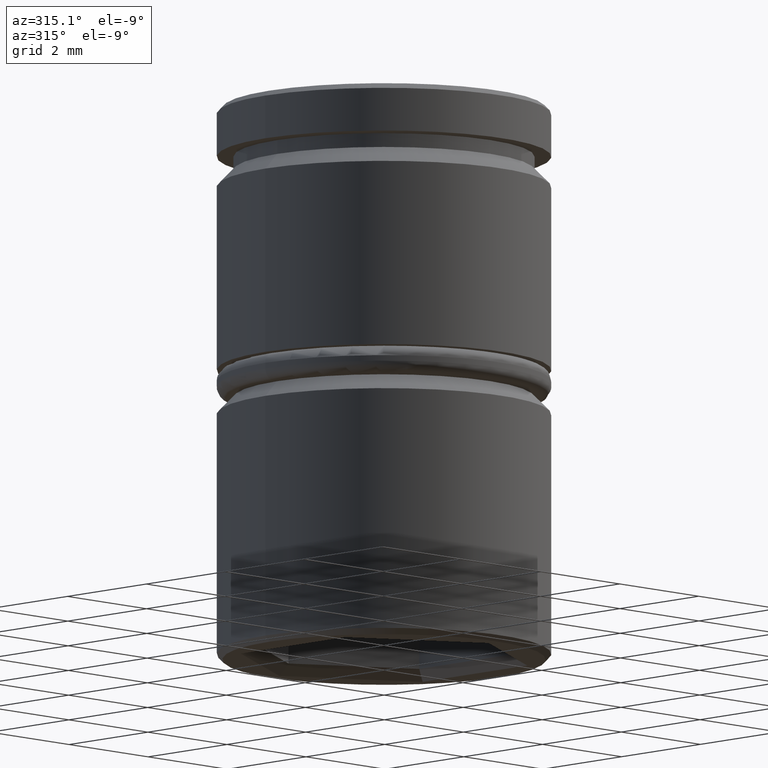
[diagram: clean part render]
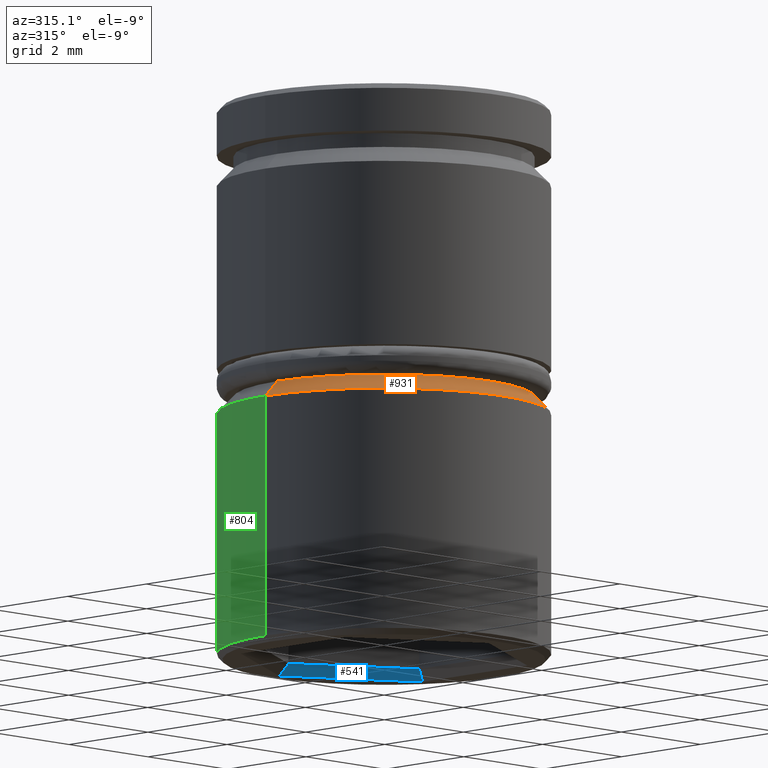
[diagram: same view with three faces highlighted in distinct colors, each labeled with its STEP entity id]
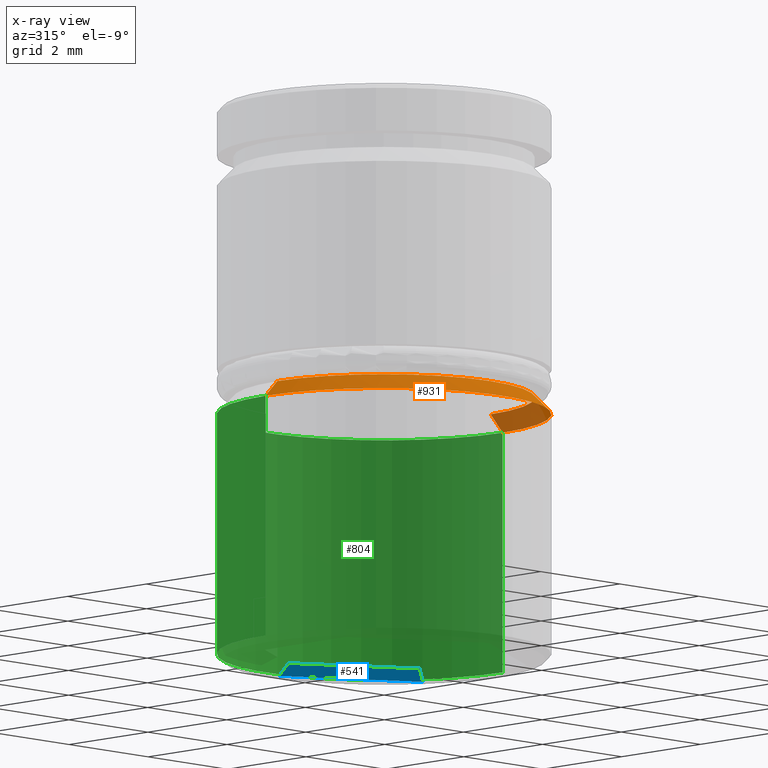
[diagram: x-ray of the same camera — body ghosted, the three highlighted faces saturated]
A machine part, auxiliary view with three faces highlighted in distinct colors.
The next image is the same camera in x-ray (body ghosted, the three faces saturated) — at least one of them is partly hidden behind the body in this view.
Their STEP definitions:

[orange] entity #931 — the highlighted conical surface has half-angle 45 deg.
#46 = EDGE_CURVE ( 'NONE', #899, #727, #458, .T. ) ;
#47 = DIRECTION ( 'NONE',  ( 0.000000000000000000, 0.000000000000000000, -1.000000000000000000 ) ) ;
#68 = CARTESIAN_POINT ( 'NONE',  ( -2.700000000000000178, 3.306546357697853733E-16, -5.249999999999999112 ) ) ;
#118 = CARTESIAN_POINT ( 'NONE',  ( -2.699999999999997957, 0.000000000000000000, -5.249999999999999112 ) ) ;
#161 = DIRECTION ( 'NONE',  ( 0.7071067811865480168, 8.659560562354939021E-17, -0.7071067811865470176 ) ) ;
#219 = DIRECTION ( 'NONE',  ( -0.000000000000000000, -0.000000000000000000, 1.000000000000000000 ) ) ;
#228 = ORIENTED_EDGE ( 'NONE', *, *, #305, .T. ) ;
#239 = EDGE_CURVE ( 'NONE', #828, #826, #1053, .T. ) ;
#256 = EDGE_LOOP ( 'NONE', ( #1065, #650, #228, #605 ) ) ;
#261 = FACE_OUTER_BOUND ( 'NONE', #256, .T. ) ;
#270 = VECTOR ( 'NONE', #849, 1000.000000000000000 ) ;
#297 = AXIS2_PLACEMENT_3D ( 'NONE', #673, #219, #473 ) ;
#305 = EDGE_CURVE ( 'NONE', #899, #826, #649, .T. ) ;
#331 = DIRECTION ( 'NONE',  ( 1.000000000000000000, 0.000000000000000000, 0.000000000000000000 ) ) ;
#359 = VECTOR ( 'NONE', #161, 1000.000000000000000 ) ;
#367 = CARTESIAN_POINT ( 'NONE',  ( 3.000000000000000000, 0.000000000000000000, -5.550000000000000711 ) ) ;
#426 = AXIS2_PLACEMENT_3D ( 'NONE', #1137, #607, #883 ) ;
#458 = CIRCLE ( 'NONE', #297, 2.700000000000000178 ) ;
#473 = DIRECTION ( 'NONE',  ( 1.000000000000000000, 0.000000000000000000, 0.000000000000000000 ) ) ;
#605 = ORIENTED_EDGE ( 'NONE', *, *, #239, .F. ) ;
#607 = DIRECTION ( 'NONE',  ( 0.000000000000000000, 0.000000000000000000, -1.000000000000000000 ) ) ;
#649 = LINE ( 'NONE', #118, #270 ) ;
#650 = ORIENTED_EDGE ( 'NONE', *, *, #46, .F. ) ;
#673 = CARTESIAN_POINT ( 'NONE',  ( 0.000000000000000000, 0.000000000000000000, -5.249999999999999112 ) ) ;
#727 = VERTEX_POINT ( 'NONE', #919 ) ;
#745 = EDGE_CURVE ( 'NONE', #727, #828, #1054, .T. ) ;
#788 = CARTESIAN_POINT ( 'NONE',  ( 2.699999999999997957, 3.306546357697851268E-16, -5.249999999999999112 ) ) ;
#826 = VERTEX_POINT ( 'NONE', #989 ) ;
#828 = VERTEX_POINT ( 'NONE', #367 ) ;
#849 = DIRECTION ( 'NONE',  ( -0.7071067811865480168, 0.000000000000000000, -0.7071067811865470176 ) ) ;
#852 = CONICAL_SURFACE ( 'NONE', #426, 2.699999999999997957, 0.7853981633974490562 ) ;
#859 = CARTESIAN_POINT ( 'NONE',  ( 0.000000000000000000, 0.000000000000000000, -5.550000000000000711 ) ) ;
#883 = DIRECTION ( 'NONE',  ( -1.000000000000000000, 0.000000000000000000, 0.000000000000000000 ) ) ;
#899 = VERTEX_POINT ( 'NONE', #68 ) ;
#919 = CARTESIAN_POINT ( 'NONE',  ( 2.700000000000000178, 0.000000000000000000, -5.249999999999999112 ) ) ;
#931 = ADVANCED_FACE ( 'NONE', ( #261 ), #852, .T. ) ;
#989 = CARTESIAN_POINT ( 'NONE',  ( -3.000000000000000000, 3.673940397442059868E-16, -5.550000000000000711 ) ) ;
#1053 = CIRCLE ( 'NONE', #1090, 3.000000000000000000 ) ;
#1054 = LINE ( 'NONE', #788, #359 ) ;
#1065 = ORIENTED_EDGE ( 'NONE', *, *, #745, .F. ) ;
#1090 = AXIS2_PLACEMENT_3D ( 'NONE', #859, #47, #331 ) ;
#1137 = CARTESIAN_POINT ( 'NONE',  ( 0.000000000000000000, 0.000000000000000000, -5.249999999999999112 ) ) ;

[blue] entity #541 — the highlighted planar face has unit normal (-0.3536, -0.6124, -0.7071).
#30 = CARTESIAN_POINT ( 'NONE',  ( 2.100000000000000977, 1.212435565298214390, -9.799999999999997158 ) ) ;
#31 = VECTOR ( 'NONE', #755, 1000.000000000000000 ) ;
#36 = VECTOR ( 'NONE', #328, 1000.000000000000000 ) ;
#42 = CARTESIAN_POINT ( 'NONE',  ( 0.000000000000000000, 2.424871130596428781, -9.799999999999997158 ) ) ;
#151 = DIRECTION ( 'NONE',  ( 3.950438052123424832E-16, 0.7559289460184517306, -0.6546536707079804174 ) ) ;
#188 = VERTEX_POINT ( 'NONE', #42 ) ;
#193 = ORIENTED_EDGE ( 'NONE', *, *, #626, .F. ) ;
#266 = ORIENTED_EDGE ( 'NONE', *, *, #1167, .F. ) ;
#292 = CARTESIAN_POINT ( 'NONE',  ( 1.441772048971224487E-16, 2.655811238272279606, -10.00000000000000000 ) ) ;
#324 = ORIENTED_EDGE ( 'NONE', *, *, #348, .F. ) ;
#328 = DIRECTION ( 'NONE',  ( -0.8660254037844387076, 0.4999999999999998890, 0.000000000000000000 ) ) ;
#348 = EDGE_CURVE ( 'NONE', #188, #419, #1030, .T. ) ;
#375 = EDGE_LOOP ( 'NONE', ( #1142, #266, #193, #324 ) ) ;
#382 = LINE ( 'NONE', #836, #31 ) ;
#419 = VERTEX_POINT ( 'NONE', #1136 ) ;
#429 = VECTOR ( 'NONE', #151, 999.9999999999998863 ) ;
#502 = DIRECTION ( 'NONE',  ( 0.8660254037844387076, -0.4999999999999998890, 0.000000000000000000 ) ) ;
#528 = DIRECTION ( 'NONE',  ( -0.3535533905932751741, -0.6123724356957971349, -0.7071067811865445751 ) ) ;
#541 = ADVANCED_FACE ( 'NONE', ( #969 ), #812, .T. ) ;
#574 = VERTEX_POINT ( 'NONE', #292 ) ;
#604 = LINE ( 'NONE', #693, #429 ) ;
#618 = CARTESIAN_POINT ( 'NONE',  ( 2.300000000000001599, 1.327905619136140025, -10.00000000000000000 ) ) ;
#626 = EDGE_CURVE ( 'NONE', #419, #905, #382, .T. ) ;
#693 = CARTESIAN_POINT ( 'NONE',  ( -4.336808689942017736E-16, 1.732050807568882522, -9.199999999999995737 ) ) ;
#701 = CARTESIAN_POINT ( 'NONE',  ( 0.1000000000000002276, 2.598076211353317344, -10.00000000000000000 ) ) ;
#755 = DIRECTION ( 'NONE',  ( 0.6546536707079746442, 0.3779644730092260874, -0.6546536707079803064 ) ) ;
#765 = LINE ( 'NONE', #701, #36 ) ;
#774 = VECTOR ( 'NONE', #502, 1000.000000000000000 ) ;
#797 = AXIS2_PLACEMENT_3D ( 'NONE', #1144, #528, #904 ) ;
#812 = PLANE ( 'NONE',  #797 ) ;
#836 = CARTESIAN_POINT ( 'NONE',  ( 1.500000000000005773, 0.8660254037844412611, -9.199999999999995737 ) ) ;
#904 = DIRECTION ( 'NONE',  ( -0.8660254037844387076, 0.4999999999999998890, 0.000000000000000000 ) ) ;
#905 = VERTEX_POINT ( 'NONE', #618 ) ;
#969 = FACE_OUTER_BOUND ( 'NONE', #375, .T. ) ;
#1030 = LINE ( 'NONE', #30, #774 ) ;
#1136 = CARTESIAN_POINT ( 'NONE',  ( 2.100000000000000977, 1.212435565298214390, -9.799999999999997158 ) ) ;
#1142 = ORIENTED_EDGE ( 'NONE', *, *, #1176, .T. ) ;
#1144 = CARTESIAN_POINT ( 'NONE',  ( 0.000000000000000000, 2.424871130596428781, -9.799999999999997158 ) ) ;
#1167 = EDGE_CURVE ( 'NONE', #905, #574, #765, .T. ) ;
#1176 = EDGE_CURVE ( 'NONE', #188, #574, #604, .T. ) ;

[green] entity #804 — the highlighted cylindrical surface (partial cylindrical patch) has radius 3 mm, axis along (-0, -0, 1).
#67 = VERTEX_POINT ( 'NONE', #199 ) ;
#74 = VERTEX_POINT ( 'NONE', #1026 ) ;
#83 = DIRECTION ( 'NONE',  ( -0.000000000000000000, -0.000000000000000000, 1.000000000000000000 ) ) ;
#133 = DIRECTION ( 'NONE',  ( -0.000000000000000000, -0.000000000000000000, 1.000000000000000000 ) ) ;
#134 = DIRECTION ( 'NONE',  ( 0.000000000000000000, 0.000000000000000000, -1.000000000000000000 ) ) ;
#152 = FACE_OUTER_BOUND ( 'NONE', #641, .T. ) ;
#167 = DIRECTION ( 'NONE',  ( -0.000000000000000000, -0.000000000000000000, 1.000000000000000000 ) ) ;
#172 = DIRECTION ( 'NONE',  ( -0.000000000000000000, -0.000000000000000000, 1.000000000000000000 ) ) ;
#199 = CARTESIAN_POINT ( 'NONE',  ( -3.000000000000000000, 3.673940397442059868E-16, -9.900000000000000355 ) ) ;
#238 = LINE ( 'NONE', #501, #777 ) ;
#251 = CARTESIAN_POINT ( 'NONE',  ( 0.000000000000000000, 0.000000000000000000, 0.000000000000000000 ) ) ;
#255 = CIRCLE ( 'NONE', #923, 3.000000000000000000 ) ;
#300 = CIRCLE ( 'NONE', #414, 3.000000000000000000 ) ;
#326 = DIRECTION ( 'NONE',  ( -1.000000000000000000, 0.000000000000000000, 0.000000000000000000 ) ) ;
#360 = EDGE_CURVE ( 'NONE', #826, #828, #255, .T. ) ;
#367 = CARTESIAN_POINT ( 'NONE',  ( 3.000000000000000000, 0.000000000000000000, -5.550000000000000711 ) ) ;
#414 = AXIS2_PLACEMENT_3D ( 'NONE', #801, #167, #326 ) ;
#501 = CARTESIAN_POINT ( 'NONE',  ( -3.000000000000000000, 3.673940397442059868E-16, 0.000000000000000000 ) ) ;
#511 = CYLINDRICAL_SURFACE ( 'NONE', #1019, 3.000000000000000000 ) ;
#635 = LINE ( 'NONE', #1174, #734 ) ;
#641 = EDGE_LOOP ( 'NONE', ( #681, #1050, #806, #920 ) ) ;
#681 = ORIENTED_EDGE ( 'NONE', *, *, #936, .T. ) ;
#734 = VECTOR ( 'NONE', #172, 1000.000000000000000 ) ;
#777 = VECTOR ( 'NONE', #133, 1000.000000000000000 ) ;
#801 = CARTESIAN_POINT ( 'NONE',  ( 0.000000000000000000, 0.000000000000000000, -9.900000000000000355 ) ) ;
#804 = ADVANCED_FACE ( 'NONE', ( #152 ), #511, .T. ) ;
#806 = ORIENTED_EDGE ( 'NONE', *, *, #360, .T. ) ;
#826 = VERTEX_POINT ( 'NONE', #989 ) ;
#828 = VERTEX_POINT ( 'NONE', #367 ) ;
#903 = EDGE_CURVE ( 'NONE', #74, #828, #635, .T. ) ;
#920 = ORIENTED_EDGE ( 'NONE', *, *, #903, .F. ) ;
#923 = AXIS2_PLACEMENT_3D ( 'NONE', #954, #134, #1047 ) ;
#936 = EDGE_CURVE ( 'NONE', #74, #67, #300, .T. ) ;
#954 = CARTESIAN_POINT ( 'NONE',  ( 0.000000000000000000, 0.000000000000000000, -5.550000000000000711 ) ) ;
#970 = EDGE_CURVE ( 'NONE', #67, #826, #238, .T. ) ;
#982 = DIRECTION ( 'NONE',  ( 1.000000000000000000, 0.000000000000000000, 0.000000000000000000 ) ) ;
#989 = CARTESIAN_POINT ( 'NONE',  ( -3.000000000000000000, 3.673940397442059868E-16, -5.550000000000000711 ) ) ;
#1019 = AXIS2_PLACEMENT_3D ( 'NONE', #251, #83, #982 ) ;
#1026 = CARTESIAN_POINT ( 'NONE',  ( 3.000000000000000000, 0.000000000000000000, -9.900000000000000355 ) ) ;
#1047 = DIRECTION ( 'NONE',  ( 1.000000000000000000, 0.000000000000000000, 0.000000000000000000 ) ) ;
#1050 = ORIENTED_EDGE ( 'NONE', *, *, #970, .T. ) ;
#1174 = CARTESIAN_POINT ( 'NONE',  ( 3.000000000000000000, 0.000000000000000000, 0.000000000000000000 ) ) ;